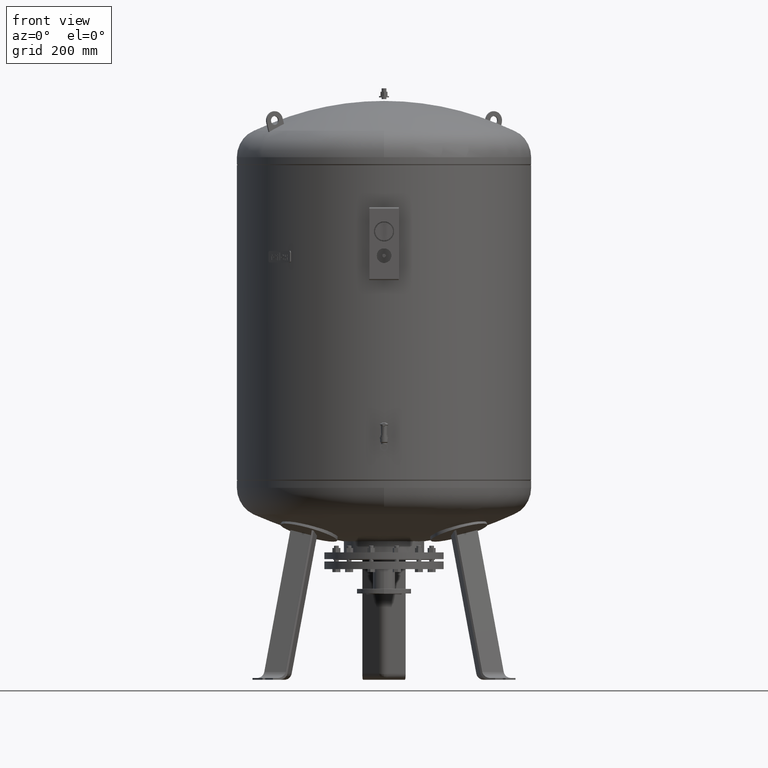
[diagram: clean part render]
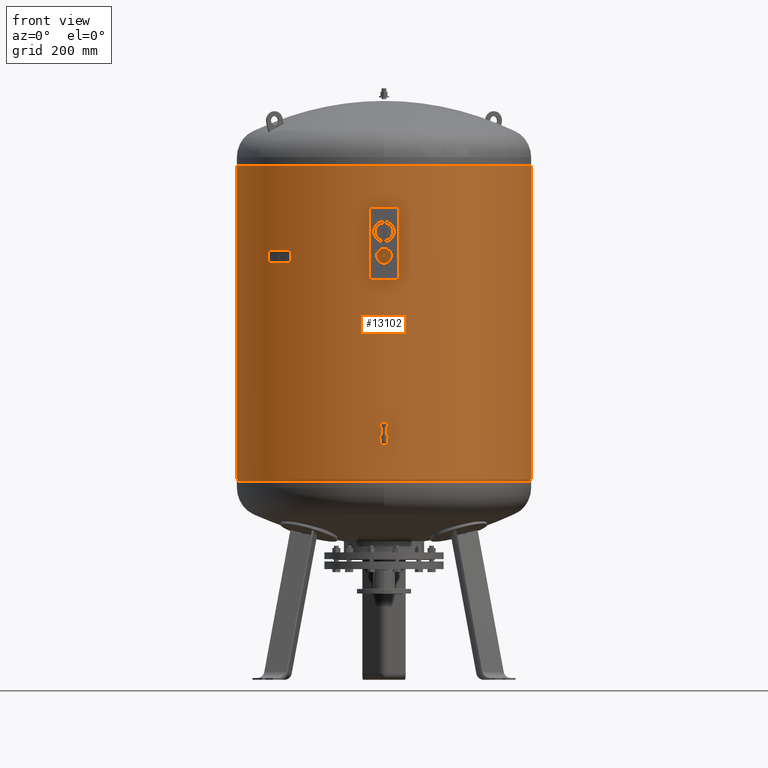
[diagram: same view with one face highlighted and labeled with its STEP entity id]
A machine part, front view. The second image highlights one B-rep face of the part: STEP entity #13102.
In plain terms, the highlighted cylindrical surface (partial cylindrical patch) has radius 500 mm, axis along (0, 0, 1).
Its self-contained STEP definition (entity closure, byte-faithful):
#13061=CARTESIAN_POINT('',(8.297411E-015,0.0,1481.250000000000000));
#13062=DIRECTION('',(3.104738E-017,0.0,1.0));
#13063=DIRECTION('',(1.0,0.0,0.0));
#13064=AXIS2_PLACEMENT_3D('',#13061,#13062,#13063);
#13065=CYLINDRICAL_SURFACE('',#13064,500.000000000000570);
#13066=CARTESIAN_POINT('',(500.000000000000570,0.0,1748.500000000000000));
#13067=VERTEX_POINT('',#13066);
#13068=CARTESIAN_POINT('',(499.999999999999890,0.0,679.500000000000000));
#13069=VERTEX_POINT('',#13068);
#13070=CARTESIAN_POINT('',(500.000000000000570,0.0,1748.500000000000000));
#13071=DIRECTION('',(0.0,0.0,-1.0));
#13072=VECTOR('',#13071,1069.0);
#13073=LINE('',#13070,#13072);
#13074=EDGE_CURVE('',#13067,#13069,#13073,.T.);
#13075=ORIENTED_EDGE('',*,*,#13074,.F.);
#13076=CARTESIAN_POINT('',(-500.000000000000570,-6.123032E-014,1748.500000000000000));
#13077=VERTEX_POINT('',#13076);
#13078=CARTESIAN_POINT('',(1.659482E-014,0.0,1748.500000000000000));
#13079=DIRECTION('',(0.0,0.0,1.0));
#13080=DIRECTION('',(1.0,0.0,0.0));
#13081=AXIS2_PLACEMENT_3D('',#13078,#13079,#13080);
#13082=CIRCLE('',#13081,500.000000000000570);
#13083=EDGE_CURVE('',#13077,#13067,#13082,.T.);
#13084=ORIENTED_EDGE('',*,*,#13083,.F.);
#13085=CARTESIAN_POINT('',(-499.999999999999890,-6.123032E-014,679.500000000000000));
#13086=VERTEX_POINT('',#13085);
#13087=CARTESIAN_POINT('',(-500.000000000000570,-6.123032E-014,1748.500000000000000));
#13088=DIRECTION('',(0.0,0.0,-1.0));
#13089=VECTOR('',#13088,1069.0);
#13090=LINE('',#13087,#13089);
#13091=EDGE_CURVE('',#13077,#13086,#13090,.T.);
#13092=ORIENTED_EDGE('',*,*,#13091,.T.);
#13093=CARTESIAN_POINT('',(-1.659482E-014,0.0,679.500000000000000));
#13094=DIRECTION('',(0.0,0.0,1.0));
#13095=DIRECTION('',(1.0,0.0,0.0));
#13096=AXIS2_PLACEMENT_3D('',#13093,#13094,#13095);
#13097=CIRCLE('',#13096,499.999999999999890);
#13098=EDGE_CURVE('',#13086,#13069,#13097,.T.);
#13099=ORIENTED_EDGE('',*,*,#13098,.T.);
#13100=EDGE_LOOP('',(#13075,#13084,#13092,#13099));
#13101=FACE_OUTER_BOUND('',#13100,.T.);
#13102=ADVANCED_FACE('',(#13101),#13065,.T.);